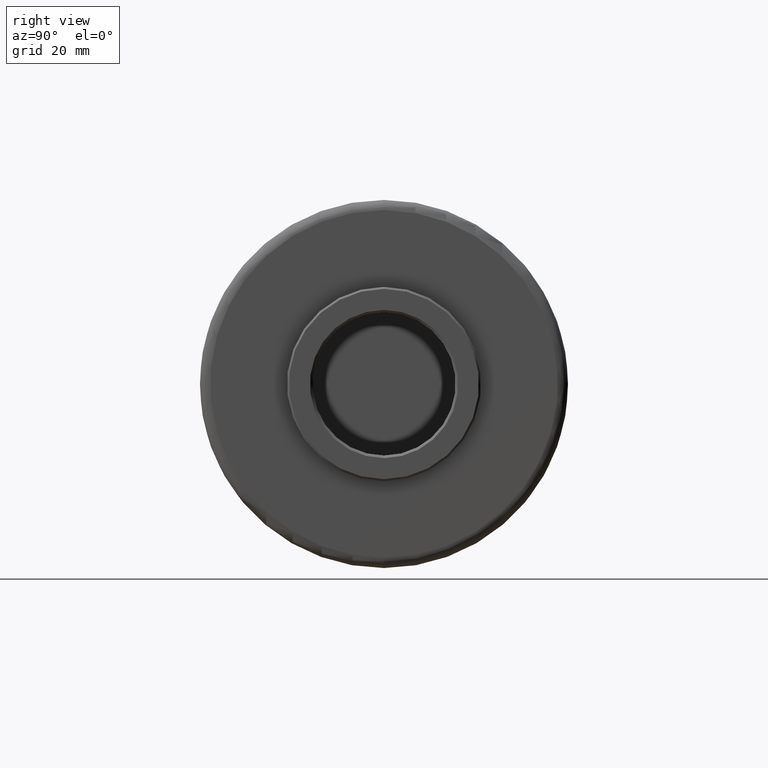
[diagram: clean part render]
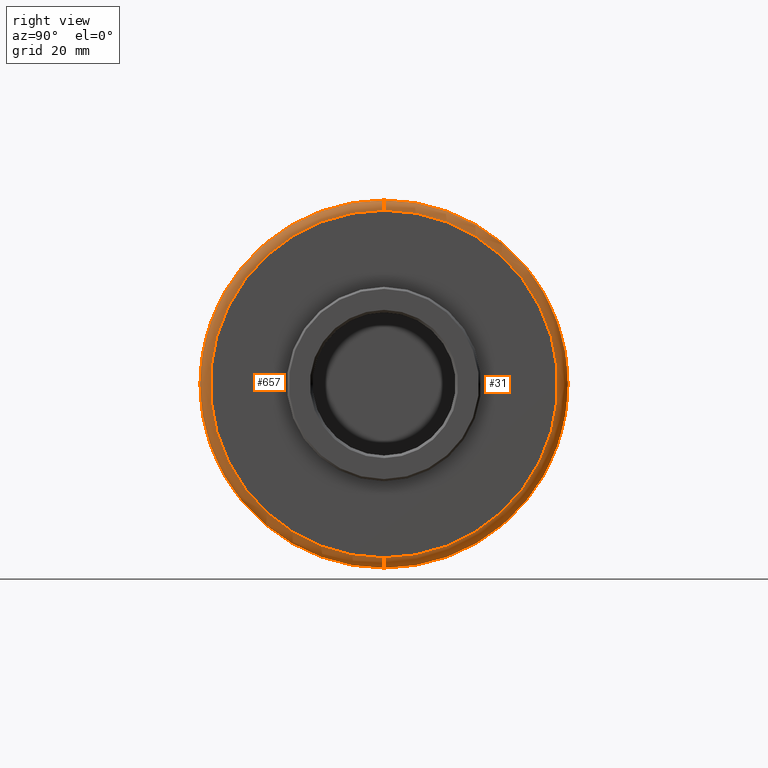
[diagram: same view with one multi-face feature highlighted, each face labeled with its STEP entity id]
A machine part, right view. The highlighted faces form ONE feature: a constant-radius fillet chain: 2 tangent blend faces with common blend radius 2 mm. The faces share edges in the B-rep.
Their STEP definitions:
[1] entity #657 (Torus):
#79 = DIRECTION ( 'NONE',  ( -1.000000000000000000, 0.0000000000000000000, 0.0000000000000000000 ) ) ;
#136 = CIRCLE ( 'NONE', #590, 2.000000000000001800 ) ;
#175 = FACE_OUTER_BOUND ( 'NONE', #973, .T. ) ;
#180 = DIRECTION ( 'NONE',  ( 1.000000000000000000, -0.0000000000000000000, -0.0000000000000000000 ) ) ;
#184 = DIRECTION ( 'NONE',  ( 0.0000000000000000000, -1.000000000000000000, 0.0000000000000000000 ) ) ;
#237 = ORIENTED_EDGE ( 'NONE', *, *, #1381, .F. ) ;
#292 = DIRECTION ( 'NONE',  ( 0.0000000000000000000, 0.0000000000000000000, 1.000000000000000000 ) ) ;
#384 = CARTESIAN_POINT ( 'NONE',  ( 94.50000000000000000, 4.163799117101001300E-015, -34.00000000000000700 ) ) ;
#396 = AXIS2_PLACEMENT_3D ( 'NONE', #740, #79, #841 ) ;
#430 = ORIENTED_EDGE ( 'NONE', *, *, #762, .T. ) ;
#448 = DIRECTION ( 'NONE',  ( -1.000000000000000000, 0.0000000000000000000, 0.0000000000000000000 ) ) ;
#498 = DIRECTION ( 'NONE',  ( 0.0000000000000000000, -1.224646799147353500E-016, 1.000000000000000000 ) ) ;
#543 = ORIENTED_EDGE ( 'NONE', *, *, #1119, .F. ) ;
#571 = EDGE_CURVE ( 'NONE', #1093, #1397, #575, .T. ) ;
#575 = CIRCLE ( 'NONE', #396, 36.00000000000001400 ) ;
#577 = ORIENTED_EDGE ( 'NONE', *, *, #571, .F. ) ;
#586 = CARTESIAN_POINT ( 'NONE',  ( 96.50000000000000000, 4.286263797015737300E-015, -34.00000000000000700 ) ) ;
#590 = AXIS2_PLACEMENT_3D ( 'NONE', #384, #1118, #498 ) ;
#646 = VERTEX_POINT ( 'NONE', #969 ) ;
#657 = ADVANCED_FACE ( 'NONE', ( #175 ), #1072, .T. ) ;
#658 = CARTESIAN_POINT ( 'NONE',  ( 94.50000000000000000, 0.0000000000000000000, 0.0000000000000000000 ) ) ;
#740 = CARTESIAN_POINT ( 'NONE',  ( 94.50000000000000000, 0.0000000000000000000, 0.0000000000000000000 ) ) ;
#751 = AXIS2_PLACEMENT_3D ( 'NONE', #822, #184, #928 ) ;
#762 = EDGE_CURVE ( 'NONE', #646, #1397, #1108, .T. ) ;
#820 = CARTESIAN_POINT ( 'NONE',  ( 96.50000000000000000, 0.0000000000000000000, 0.0000000000000000000 ) ) ;
#822 = CARTESIAN_POINT ( 'NONE',  ( 94.50000000000000000, 0.0000000000000000000, 34.00000000000000700 ) ) ;
#841 = DIRECTION ( 'NONE',  ( 0.0000000000000000000, 0.0000000000000000000, 1.000000000000000000 ) ) ;
#852 = CIRCLE ( 'NONE', #1113, 34.00000000000000700 ) ;
#928 = DIRECTION ( 'NONE',  ( 0.0000000000000000000, 0.0000000000000000000, -1.000000000000000000 ) ) ;
#945 = VERTEX_POINT ( 'NONE', #586 ) ;
#969 = CARTESIAN_POINT ( 'NONE',  ( 96.50000000000000000, 0.0000000000000000000, 34.00000000000000700 ) ) ;
#973 = EDGE_LOOP ( 'NONE', ( #237, #543, #430, #577 ) ) ;
#1072 = TOROIDAL_SURFACE ( 'NONE', #1233, 34.00000000000000700, 2.000000000000000000 ) ;
#1093 = VERTEX_POINT ( 'NONE', #1226 ) ;
#1108 = CIRCLE ( 'NONE', #751, 2.000000000000001800 ) ;
#1113 = AXIS2_PLACEMENT_3D ( 'NONE', #820, #180, #292 ) ;
#1118 = DIRECTION ( 'NONE',  ( 0.0000000000000000000, 1.000000000000000000, 1.224646799147353200E-016 ) ) ;
#1119 = EDGE_CURVE ( 'NONE', #646, #945, #852, .T. ) ;
#1126 = CARTESIAN_POINT ( 'NONE',  ( 94.50000000000000000, 0.0000000000000000000, 36.00000000000001400 ) ) ;
#1226 = CARTESIAN_POINT ( 'NONE',  ( 94.50000000000000000, 4.408728476930472400E-015, -36.00000000000001400 ) ) ;
#1233 = AXIS2_PLACEMENT_3D ( 'NONE', #658, #448, #1286 ) ;
#1286 = DIRECTION ( 'NONE',  ( 0.0000000000000000000, 0.0000000000000000000, 1.000000000000000000 ) ) ;
#1381 = EDGE_CURVE ( 'NONE', #945, #1093, #136, .T. ) ;
#1397 = VERTEX_POINT ( 'NONE', #1126 ) ;
[2] entity #31 (Torus):
#24 = EDGE_LOOP ( 'NONE', ( #890, #135, #179, #324 ) ) ;
#31 = ADVANCED_FACE ( 'NONE', ( #755 ), #713, .T. ) ;
#68 = AXIS2_PLACEMENT_3D ( 'NONE', #1374, #89, #848 ) ;
#89 = DIRECTION ( 'NONE',  ( -1.000000000000000000, 0.0000000000000000000, 0.0000000000000000000 ) ) ;
#110 = EDGE_CURVE ( 'NONE', #1397, #1093, #674, .T. ) ;
#135 = ORIENTED_EDGE ( 'NONE', *, *, #1381, .T. ) ;
#136 = CIRCLE ( 'NONE', #590, 2.000000000000001800 ) ;
#179 = ORIENTED_EDGE ( 'NONE', *, *, #110, .F. ) ;
#184 = DIRECTION ( 'NONE',  ( 0.0000000000000000000, -1.000000000000000000, 0.0000000000000000000 ) ) ;
#227 = AXIS2_PLACEMENT_3D ( 'NONE', #520, #1242, #622 ) ;
#266 = EDGE_CURVE ( 'NONE', #945, #646, #1234, .T. ) ;
#286 = CARTESIAN_POINT ( 'NONE',  ( 96.50000000000000000, 0.0000000000000000000, 0.0000000000000000000 ) ) ;
#324 = ORIENTED_EDGE ( 'NONE', *, *, #762, .F. ) ;
#384 = CARTESIAN_POINT ( 'NONE',  ( 94.50000000000000000, 4.163799117101001300E-015, -34.00000000000000700 ) ) ;
#498 = DIRECTION ( 'NONE',  ( 0.0000000000000000000, -1.224646799147353500E-016, 1.000000000000000000 ) ) ;
#520 = CARTESIAN_POINT ( 'NONE',  ( 94.50000000000000000, 0.0000000000000000000, 0.0000000000000000000 ) ) ;
#586 = CARTESIAN_POINT ( 'NONE',  ( 96.50000000000000000, 4.286263797015737300E-015, -34.00000000000000700 ) ) ;
#590 = AXIS2_PLACEMENT_3D ( 'NONE', #384, #1118, #498 ) ;
#622 = DIRECTION ( 'NONE',  ( 0.0000000000000000000, 0.0000000000000000000, 1.000000000000000000 ) ) ;
#646 = VERTEX_POINT ( 'NONE', #969 ) ;
#674 = CIRCLE ( 'NONE', #227, 36.00000000000001400 ) ;
#713 = TOROIDAL_SURFACE ( 'NONE', #68, 34.00000000000000700, 2.000000000000000000 ) ;
#751 = AXIS2_PLACEMENT_3D ( 'NONE', #822, #184, #928 ) ;
#755 = FACE_OUTER_BOUND ( 'NONE', #24, .T. ) ;
#762 = EDGE_CURVE ( 'NONE', #646, #1397, #1108, .T. ) ;
#822 = CARTESIAN_POINT ( 'NONE',  ( 94.50000000000000000, 0.0000000000000000000, 34.00000000000000700 ) ) ;
#843 = AXIS2_PLACEMENT_3D ( 'NONE', #286, #1032, #1225 ) ;
#848 = DIRECTION ( 'NONE',  ( 0.0000000000000000000, 0.0000000000000000000, 1.000000000000000000 ) ) ;
#890 = ORIENTED_EDGE ( 'NONE', *, *, #266, .F. ) ;
#928 = DIRECTION ( 'NONE',  ( 0.0000000000000000000, 0.0000000000000000000, -1.000000000000000000 ) ) ;
#945 = VERTEX_POINT ( 'NONE', #586 ) ;
#969 = CARTESIAN_POINT ( 'NONE',  ( 96.50000000000000000, 0.0000000000000000000, 34.00000000000000700 ) ) ;
#1032 = DIRECTION ( 'NONE',  ( 1.000000000000000000, -0.0000000000000000000, -0.0000000000000000000 ) ) ;
#1093 = VERTEX_POINT ( 'NONE', #1226 ) ;
#1108 = CIRCLE ( 'NONE', #751, 2.000000000000001800 ) ;
#1118 = DIRECTION ( 'NONE',  ( 0.0000000000000000000, 1.000000000000000000, 1.224646799147353200E-016 ) ) ;
#1126 = CARTESIAN_POINT ( 'NONE',  ( 94.50000000000000000, 0.0000000000000000000, 36.00000000000001400 ) ) ;
#1225 = DIRECTION ( 'NONE',  ( 0.0000000000000000000, 0.0000000000000000000, 1.000000000000000000 ) ) ;
#1226 = CARTESIAN_POINT ( 'NONE',  ( 94.50000000000000000, 4.408728476930472400E-015, -36.00000000000001400 ) ) ;
#1234 = CIRCLE ( 'NONE', #843, 34.00000000000000700 ) ;
#1242 = DIRECTION ( 'NONE',  ( -1.000000000000000000, 0.0000000000000000000, 0.0000000000000000000 ) ) ;
#1374 = CARTESIAN_POINT ( 'NONE',  ( 94.50000000000000000, 0.0000000000000000000, 0.0000000000000000000 ) ) ;
#1381 = EDGE_CURVE ( 'NONE', #945, #1093, #136, .T. ) ;
#1397 = VERTEX_POINT ( 'NONE', #1126 ) ;